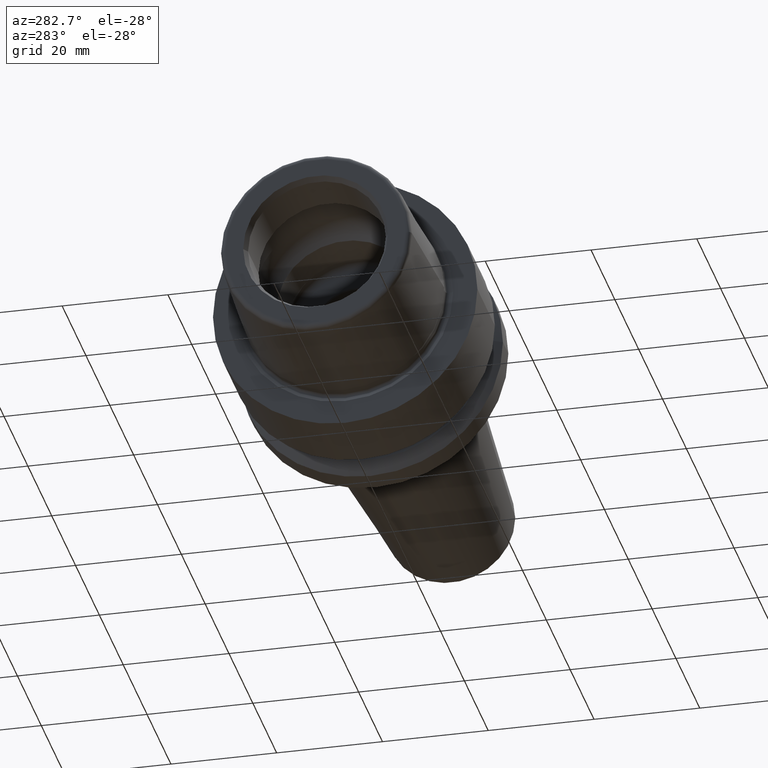
[diagram: clean part render]
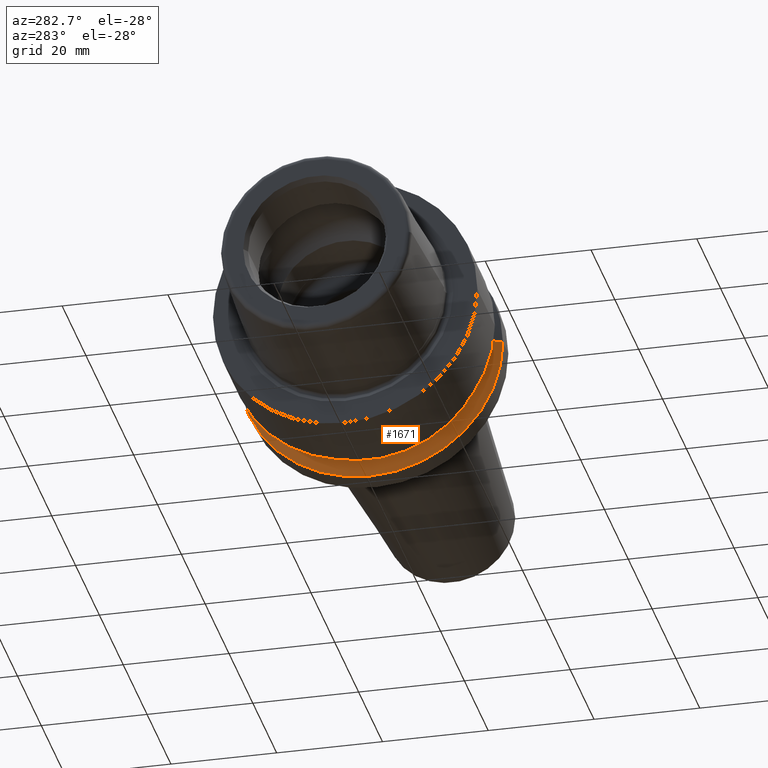
[diagram: same view with one face highlighted and labeled with its STEP entity id]
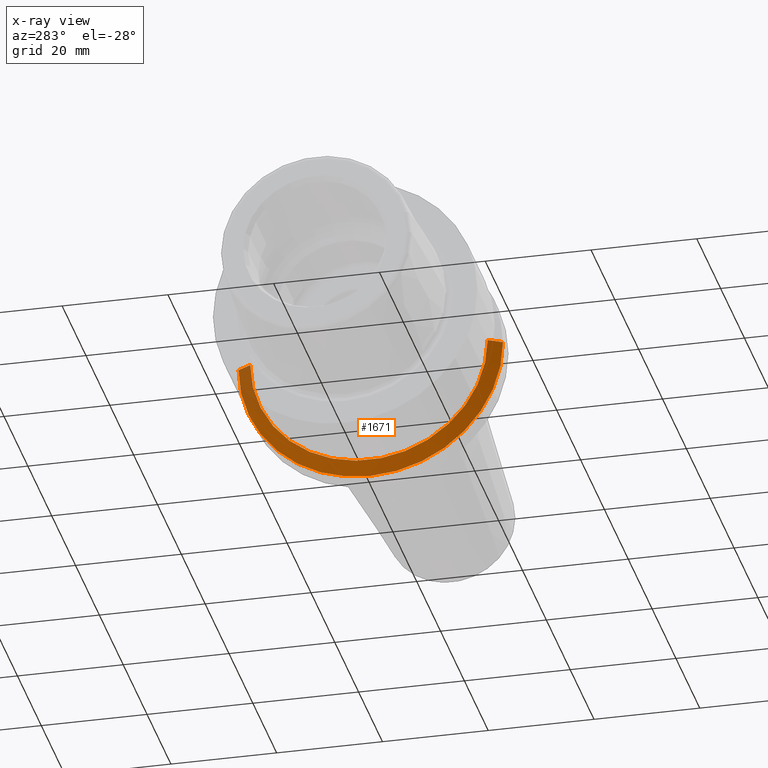
[diagram: x-ray of the same camera — body ghosted, the highlighted face saturated]
A machine part, auxiliary view. The second image highlights one B-rep face of the part: STEP entity #1671.
The next image is the same camera in x-ray: the body ghosted, the highlighted face saturated — about 10% of this face is hidden behind the body in this view.
In plain terms, the highlighted conical surface has half-angle 60 deg.
Its self-contained STEP definition (entity closure, byte-faithful):
#492=DIRECTION('',(5.E-1,8.660254037844E-1,0.E0));
#493=VECTOR('',#492,2.958865662978E0);
#494=CARTESIAN_POINT('',(1.99125E1,2.243754716948E1,0.E0));
#495=LINE('',#494,#493);
#496=CARTESIAN_POINT('',(1.99125E1,0.E0,0.E0));
#497=DIRECTION('',(-1.E0,0.E0,0.E0));
#498=DIRECTION('',(0.E0,1.E0,0.E0));
#499=AXIS2_PLACEMENT_3D('',#496,#497,#498);
#501=DIRECTION('',(5.E-1,-8.660254037844E-1,0.E0));
#502=VECTOR('',#501,2.958865662978E0);
#503=CARTESIAN_POINT('',(1.99125E1,-2.243754716948E1,0.E0));
#504=LINE('',#503,#502);
#591=CARTESIAN_POINT('',(2.139193283149E1,0.E0,0.E0));
#592=DIRECTION('',(1.E0,0.E0,0.E0));
#593=DIRECTION('',(0.E0,-1.E0,0.E0));
#594=AXIS2_PLACEMENT_3D('',#591,#592,#593);
#796=CARTESIAN_POINT('',(1.99125E1,2.243754716948E1,0.E0));
#797=CARTESIAN_POINT('',(1.99125E1,-2.243754716948E1,0.E0));
#798=VERTEX_POINT('',#796);
#799=VERTEX_POINT('',#797);
#800=CARTESIAN_POINT('',(2.139193283149E1,2.5E1,0.E0));
#801=VERTEX_POINT('',#800);
#804=CARTESIAN_POINT('',(2.139193283149E1,-2.5E1,0.E0));
#805=VERTEX_POINT('',#804);
#1658=CARTESIAN_POINT('',(2.065221641574E1,0.E0,0.E0));
#1659=DIRECTION('',(1.E0,0.E0,0.E0));
#1660=DIRECTION('',(0.E0,-1.E0,0.E0));
#1661=AXIS2_PLACEMENT_3D('',#1658,#1659,#1660);
#1662=CONICAL_SURFACE('',#1661,2.371877358474E1,6.E1);
#1663=ORIENTED_EDGE('',*,*,#1648,.F.);
#1665=ORIENTED_EDGE('',*,*,#1664,.T.);
#1666=ORIENTED_EDGE('',*,*,#1651,.T.);
#1668=ORIENTED_EDGE('',*,*,#1667,.T.);
#1669=EDGE_LOOP('',(#1663,#1665,#1666,#1668));
#1670=FACE_OUTER_BOUND('',#1669,.F.);
#1671=ADVANCED_FACE('',(#1670),#1662,.T.);
#500=CIRCLE('',#499,2.243754716948E1);
#595=CIRCLE('',#594,2.5E1);
#1648=EDGE_CURVE('',#798,#801,#495,.T.);
#1651=EDGE_CURVE('',#799,#805,#504,.T.);
#1664=EDGE_CURVE('',#798,#799,#500,.T.);
#1667=EDGE_CURVE('',#805,#801,#595,.T.);